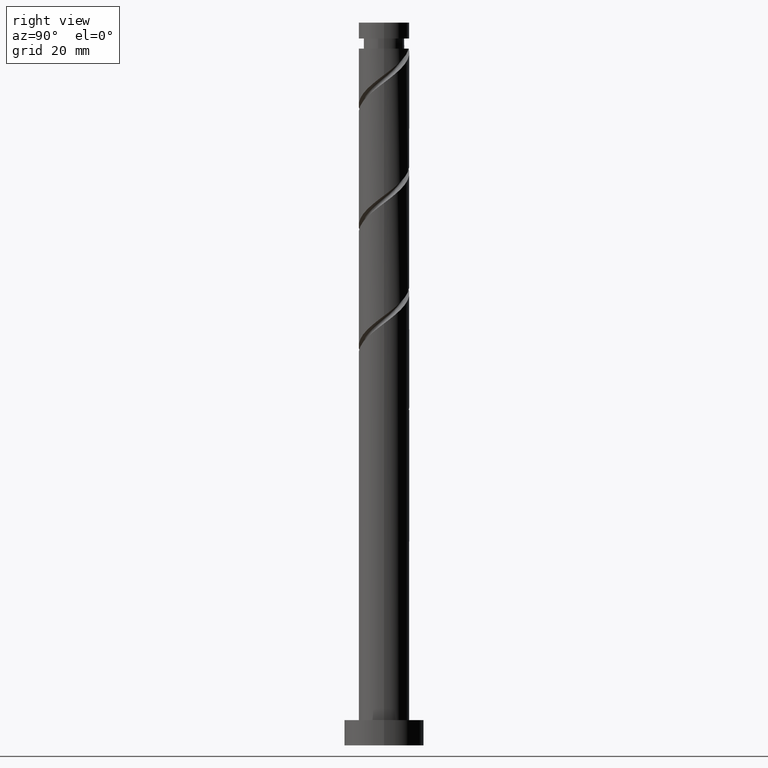
[diagram: clean part render]
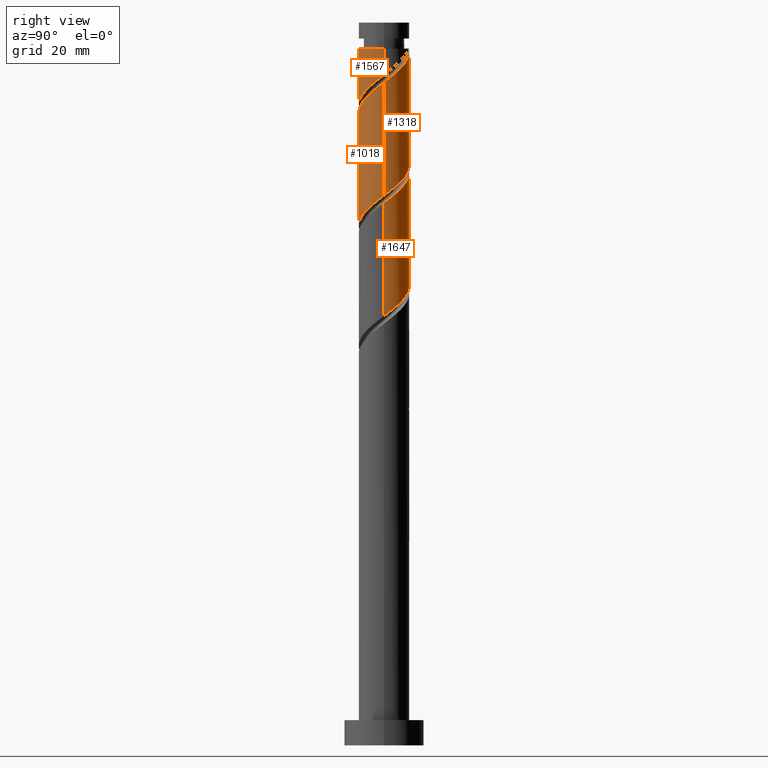
[diagram: same view with one multi-face feature highlighted, each face labeled with its STEP entity id]
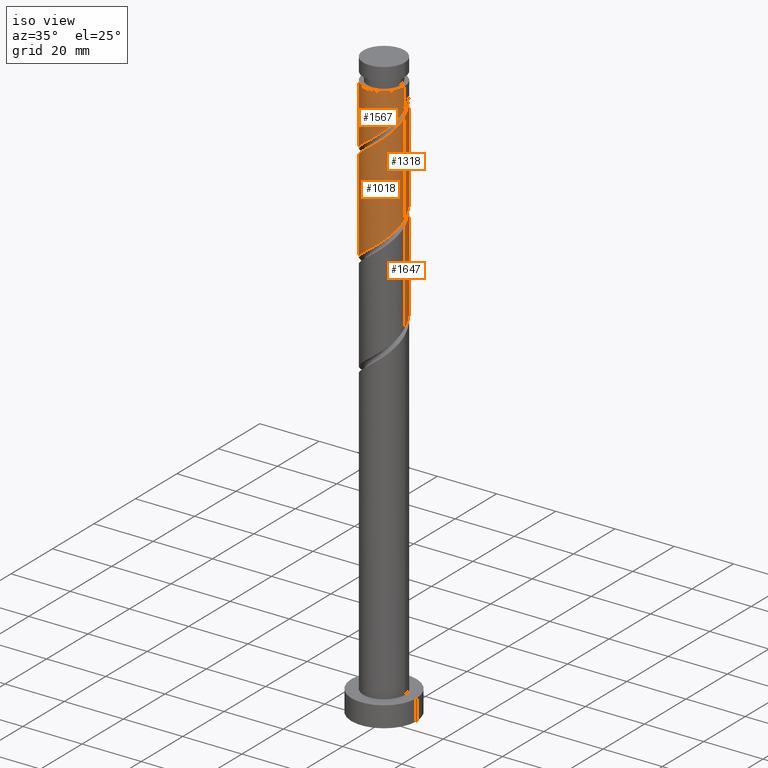
[diagram: same view with one multi-face feature highlighted, each face labeled with its STEP entity id]
A machine part, right view. The highlighted faces form ONE feature: a constant-radius fillet chain: 4 tangent blend faces with common blend radius 7 mm. The faces share edges in the B-rep.
A second angle (iso view) of the same feature is appended — it is thin or edge-on in the first view.
Their STEP definitions:
[1] entity #1567 (Cylinder):
#22 = ORIENTED_EDGE ( 'NONE', *, *, #439, .T. ) ;
#111 = LINE ( 'NONE', #642, #1714 ) ;
#142 = CARTESIAN_POINT ( 'NONE',  ( 7.000000000000000000, 2.183252528768553087E-15, 185.5235987208543236 ) ) ;
#184 = EDGE_LOOP ( 'NONE', ( #705, #1517, #22, #272 ) ) ;
#196 = VERTEX_POINT ( 'NONE', #1065 ) ;
#197 = DIRECTION ( 'NONE',  ( -1.000000000000000000, 0.000000000000000000, 0.000000000000000000 ) ) ;
#198 = DIRECTION ( 'NONE',  ( -0.000000000000000000, -0.000000000000000000, -1.000000000000000000 ) ) ;
#261 = CARTESIAN_POINT ( 'NONE',  ( -6.637425475935885721, -2.223641844227011166, 170.5711431767553279 ) ) ;
#270 = CARTESIAN_POINT ( 'NONE',  ( -6.986781546048323577, -0.4299809621350539346, 169.1822542878664990 ) ) ;
#272 = ORIENTED_EDGE ( 'NONE', *, *, #312, .F. ) ;
#279 = CARTESIAN_POINT ( 'NONE',  ( -5.835739828502638282, -3.865765209376793798, 171.9600320656442136 ) ) ;
#299 = CARTESIAN_POINT ( 'NONE',  ( 6.265720790637692161, -3.121016336671535552, 183.0711431767553563 ) ) ;
#312 = EDGE_CURVE ( 'NONE', #196, #601, #398, .T. ) ;
#395 = CARTESIAN_POINT ( 'NONE',  ( -0.4898462784997363317, -7.043389613628436408, 176.8211431767553279 ) ) ;
#398 =( BOUNDED_CURVE ( )  B_SPLINE_CURVE ( 2, ( #142, #1522, #838, #827, #299, #1617, #1503, #848, #1087, #1651, #1113, #1378, #952, #395, #1493, #943, #1103, #1385, #1348, #1485, #279, #422, #261, #975, #270, #1628, #413 ),
 .UNSPECIFIED., .F., .T. ) 
 B_SPLINE_CURVE_WITH_KNOTS ( ( 3, 2, 2, 2, 2, 2, 2, 2, 2, 2, 2, 2, 2, 3 ),
 ( 0.3045317669814463502, 0.3125000000000000000, 0.3229166666666666852, 0.3333333333333333148, 0.3437500000000000000, 0.3541666666666666852, 0.3645833333333333148, 0.3750000000000000000, 0.3854166666666666852, 0.3958333333333333148, 0.4062500000000000000, 0.4166666666666666852, 0.4270833333333333148, 0.4295317669814462391 ),
 .UNSPECIFIED. ) 
 CURVE ( )  GEOMETRIC_REPRESENTATION_ITEM ( )  RATIONAL_B_SPLINE_CURVE ( ( 0.9062941362546358404, 0.9031415850403403667, 0.9090909090909153889, 0.9013135103398340897, 0.9090909090909153889, 0.9013135103398340897, 0.9090909090909153889, 0.9013135103398340897, 0.9090909090909153889, 0.9013135103398340897, 0.9090909090909153889, 0.9013135103398340897, 0.9090909090909153889, 0.9013135103398340897, 0.9090909090909153889, 0.9013135103398340897, 0.9090909090909153889, 0.9013135103398340897, 0.9090909090909153889, 0.9013135103398340897, 0.9090909090909153889, 0.9013135103398340897, 0.9090909090909153889, 0.9013135103398340897, 0.9090909090909153889, 0.9072628343904093340, 0.9062941362546359514 ) ) 
 REPRESENTATION_ITEM ( '' )  );
#413 = CARTESIAN_POINT ( 'NONE',  ( -7.000000000000000000, -4.067429368664701480E-15, 168.8569320541876664 ) ) ;
#422 = CARTESIAN_POINT ( 'NONE',  ( -6.344677473403557144, -3.097475485684177521, 171.2655876211997850 ) ) ;
#437 = CYLINDRICAL_SURFACE ( 'NONE', #815, 7.000000000000000888 ) ;
#439 = EDGE_CURVE ( 'NONE', #979, #601, #1006, .T. ) ;
#457 = DIRECTION ( 'NONE',  ( -0.000000000000000000, -0.000000000000000000, -1.000000000000000000 ) ) ;
#465 = CARTESIAN_POINT ( 'NONE',  ( 0.000000000000000000, 0.000000000000000000, 200.0000000000000000 ) ) ;
#601 = VERTEX_POINT ( 'NONE', #758 ) ;
#617 = CARTESIAN_POINT ( 'NONE',  ( 0.000000000000000000, 0.000000000000000000, 192.7933653989775848 ) ) ;
#642 = CARTESIAN_POINT ( 'NONE',  ( 7.000000000000000888, 8.572527594031474176E-16, 200.0000000000000000 ) ) ;
#646 = EDGE_CURVE ( 'NONE', #1242, #979, #784, .T. ) ;
#705 = ORIENTED_EDGE ( 'NONE', *, *, #1693, .F. ) ;
#750 = CARTESIAN_POINT ( 'NONE',  ( -6.999999999999990230, 0.000000000000000000, 192.7933653989775848 ) ) ;
#758 = CARTESIAN_POINT ( 'NONE',  ( -7.000000000000000000, -4.067429368664701480E-15, 168.8569320541876664 ) ) ;
#784 = CIRCLE ( 'NONE', #1633, 6.999999999999990230 ) ;
#815 = AXIS2_PLACEMENT_3D ( 'NONE', #465, #457, #197 ) ;
#827 = CARTESIAN_POINT ( 'NONE',  ( 6.676610386371559791, -2.296118545398810884, 183.7655876211997850 ) ) ;
#838 = CARTESIAN_POINT ( 'NONE',  ( 6.860000000000002096, -1.392982411949271748, 184.4600320656442705 ) ) ;
#848 = CARTESIAN_POINT ( 'NONE',  ( 4.634054933069404747, -5.326802183601721197, 180.9878098434219567 ) ) ;
#943 = CARTESIAN_POINT ( 'NONE',  ( -2.296118545398808664, -6.676610386371562456, 175.4322542878664422 ) ) ;
#952 = CARTESIAN_POINT ( 'NONE',  ( 0.4299809621350517697, -6.986781546048325353, 177.5155876211998134 ) ) ;
#975 = CARTESIAN_POINT ( 'NONE',  ( -6.930173478468212522, -1.349808202769841259, 169.8766987323108708 ) ) ;
#979 = VERTEX_POINT ( 'NONE', #750 ) ;
#1006 = LINE ( 'NONE', #1273, #1526 ) ;
#1061 = DIRECTION ( 'NONE',  ( -0.000000000000000000, -0.000000000000000000, -1.000000000000000000 ) ) ;
#1065 = CARTESIAN_POINT ( 'NONE',  ( 7.000000000000000000, 2.183252528768553087E-15, 185.5235987208543236 ) ) ;
#1087 = CARTESIAN_POINT ( 'NONE',  ( 3.865765209376792022, -5.835739828502640947, 180.2933653989775280 ) ) ;
#1103 = CARTESIAN_POINT ( 'NONE',  ( -3.121016336671531999, -6.265720790637692161, 174.7378098434220703 ) ) ;
#1113 = CARTESIAN_POINT ( 'NONE',  ( 2.223641844227011166, -6.637425475935886610, 178.9044765100887275 ) ) ;
#1152 = DIRECTION ( 'NONE',  ( -1.000000000000000000, 0.000000000000000000, 0.000000000000000000 ) ) ;
#1174 = DIRECTION ( 'NONE',  ( -0.000000000000000000, -0.000000000000000000, -1.000000000000000000 ) ) ;
#1201 = CARTESIAN_POINT ( 'NONE',  ( 6.999999999999990230, 8.572527594031467273E-16, 192.7933653989775848 ) ) ;
#1242 = VERTEX_POINT ( 'NONE', #1201 ) ;
#1273 = CARTESIAN_POINT ( 'NONE',  ( -7.000000000000000888, 0.000000000000000000, 200.0000000000000000 ) ) ;
#1348 = CARTESIAN_POINT ( 'NONE',  ( -4.636358155772991374, -5.244443063986613751, 173.3489209545331562 ) ) ;
#1378 = CARTESIAN_POINT ( 'NONE',  ( 1.349808202769839705, -6.930173478468214299, 178.2100320656441852 ) ) ;
#1385 = CARTESIAN_POINT ( 'NONE',  ( -3.945914127944255778, -5.854831194903820979, 174.0433653989775848 ) ) ;
#1485 = CARTESIAN_POINT ( 'NONE',  ( -5.326802183601721197, -4.634054933069405635, 172.6544765100886138 ) ) ;
#1493 = CARTESIAN_POINT ( 'NONE',  ( -1.392982411949271304, -6.860000000000002096, 176.1266987323109561 ) ) ;
#1503 = CARTESIAN_POINT ( 'NONE',  ( 5.244443063986613751, -4.636358155772991374, 181.6822542878664990 ) ) ;
#1517 = ORIENTED_EDGE ( 'NONE', *, *, #646, .T. ) ;
#1522 = CARTESIAN_POINT ( 'NONE',  ( 7.000000000000000000, -0.7035264706814587932, 184.9901723516650520 ) ) ;
#1526 = VECTOR ( 'NONE', #198, 1000.000000000000000 ) ;
#1567 = ADVANCED_FACE ( 'NONE', ( #1673 ), #437, .T. ) ;
#1617 = CARTESIAN_POINT ( 'NONE',  ( 5.854831194903817426, -3.945914127944258443, 182.3766987323108708 ) ) ;
#1628 = CARTESIAN_POINT ( 'NONE',  ( -7.000000000000000888, -0.2151936616037147532, 169.0200957422158581 ) ) ;
#1633 = AXIS2_PLACEMENT_3D ( 'NONE', #617, #1061, #1152 ) ;
#1651 = CARTESIAN_POINT ( 'NONE',  ( 3.097475485684177521, -6.344677473403557144, 179.5989209545331278 ) ) ;
#1673 = FACE_OUTER_BOUND ( 'NONE', #184, .T. ) ;
#1693 = EDGE_CURVE ( 'NONE', #1242, #196, #111, .T. ) ;
#1714 = VECTOR ( 'NONE', #1174, 1000.000000000000000 ) ;
[2] entity #1318 (Cylinder):
#41 = CARTESIAN_POINT ( 'NONE',  ( 7.000000000000000888, 9.630237181691427221E-15, 152.1902653875210376 ) ) ;
#92 = ORIENTED_EDGE ( 'NONE', *, *, #127, .T. ) ;
#94 = CARTESIAN_POINT ( 'NONE',  ( 5.835739828502640059, 3.865765209376793798, 155.2933653989775564 ) ) ;
#127 = EDGE_CURVE ( 'NONE', #979, #977, #612, .T. ) ;
#178 = CARTESIAN_POINT ( 'NONE',  ( 2.296118545398811772, 6.676610386371559791, 158.7655876211997850 ) ) ;
#198 = DIRECTION ( 'NONE',  ( -0.000000000000000000, -0.000000000000000000, -1.000000000000000000 ) ) ;
#298 = DIRECTION ( 'NONE',  ( -1.000000000000000000, 0.000000000000000000, 0.000000000000000000 ) ) ;
#303 = AXIS2_PLACEMENT_3D ( 'NONE', #1530, #1120, #298 ) ;
#308 = CARTESIAN_POINT ( 'NONE',  ( -6.676610386371562456, 2.296118545398806443, 167.0989209545330709 ) ) ;
#318 = CARTESIAN_POINT ( 'NONE',  ( 1.392982411949271970, 6.860000000000002096, 159.4600320656442705 ) ) ;
#324 = CARTESIAN_POINT ( 'NONE',  ( 1.349808202769851029, 6.930173478468224069, 190.7100320656442989 ) ) ;
#336 = CARTESIAN_POINT ( 'NONE',  ( -2.223641844227011610, 6.637425475935885721, 162.2378098434220135 ) ) ;
#343 = CARTESIAN_POINT ( 'NONE',  ( 7.000000000000000888, 0.2151936616037162242, 152.3534290755492293 ) ) ;
#371 = CARTESIAN_POINT ( 'NONE',  ( 3.945914127944258443, 5.854831194903817426, 157.3766987323108708 ) ) ;
#438 = CARTESIAN_POINT ( 'NONE',  ( -4.634054933069408300, 5.326802183601719420, 164.3211431767553563 ) ) ;
#439 = EDGE_CURVE ( 'NONE', #979, #601, #1006, .T. ) ;
#440 = EDGE_CURVE ( 'NONE', #1663, #977, #1274, .T. ) ;
#448 = CARTESIAN_POINT ( 'NONE',  ( 7.000000000000010658, 0.7035264706814454705, 183.9298917796234889 ) ) ;
#458 = CARTESIAN_POINT ( 'NONE',  ( 6.860000000000008313, 1.392982411949269528, 184.4600320656442420 ) ) ;
#466 = CARTESIAN_POINT ( 'NONE',  ( 6.676610386371576666, 2.296118545398805111, 185.1544765100887275 ) ) ;
#472 = ORIENTED_EDGE ( 'NONE', *, *, #440, .F. ) ;
#491 = EDGE_CURVE ( 'NONE', #601, #1525, #1558, .T. ) ;
#494 = EDGE_LOOP ( 'NONE', ( #472, #1283, #855, #530, #92 ) ) ;
#514 = CARTESIAN_POINT ( 'NONE',  ( 6.986781546048323577, 0.4299809621350512701, 152.5155876211998134 ) ) ;
#530 = ORIENTED_EDGE ( 'NONE', *, *, #439, .F. ) ;
#585 = CARTESIAN_POINT ( 'NONE',  ( 5.244443063986624409, 4.636358155772987821, 187.2378098434220135 ) ) ;
#601 = VERTEX_POINT ( 'NONE', #758 ) ;
#604 = CARTESIAN_POINT ( 'NONE',  ( 3.865765209376801792, 5.835739828502643611, 188.6266987323109277 ) ) ;
#609 = CARTESIAN_POINT ( 'NONE',  ( -1.349808202769843701, 6.930173478468212522, 161.5433653989774996 ) ) ;
#612 = CIRCLE ( 'NONE', #1172, 6.999999999999990230 ) ;
#726 = CARTESIAN_POINT ( 'NONE',  ( 3.097475485684188623, 6.344677473403562473, 189.3211431767554132 ) ) ;
#728 = VECTOR ( 'NONE', #958, 1000.000000000000000 ) ;
#740 = CARTESIAN_POINT ( 'NONE',  ( -6.265720790637692161, 3.121016336671531555, 166.4044765100887560 ) ) ;
#750 = CARTESIAN_POINT ( 'NONE',  ( -6.999999999999990230, 0.000000000000000000, 192.7933653989775848 ) ) ;
#758 = CARTESIAN_POINT ( 'NONE',  ( -7.000000000000000000, -4.067429368664701480E-15, 168.8569320541876664 ) ) ;
#761 = DIRECTION ( 'NONE',  ( -0.000000000000000000, -0.000000000000000000, -1.000000000000000000 ) ) ;
#765 = CARTESIAN_POINT ( 'NONE',  ( 6.930173478468214299, 1.349808202769839260, 153.2100320656441852 ) ) ;
#770 = DIRECTION ( 'NONE',  ( -1.000000000000000000, 0.000000000000000000, 0.000000000000000000 ) ) ;
#855 = ORIENTED_EDGE ( 'NONE', *, *, #491, .F. ) ;
#857 = CARTESIAN_POINT ( 'NONE',  ( 0.4898462784997342778, 7.043389613628434631, 160.1544765100886707 ) ) ;
#885 = CARTESIAN_POINT ( 'NONE',  ( 6.265720790637704596, 3.121016336671531555, 185.8489209545331278 ) ) ;
#912 = CARTESIAN_POINT ( 'NONE',  ( 7.000000000000010658, -1.884176839896138137E-15, 183.3964654104341889 ) ) ;
#958 = DIRECTION ( 'NONE',  ( -0.000000000000000000, -0.000000000000000000, -1.000000000000000000 ) ) ;
#977 = VERTEX_POINT ( 'NONE', #1294 ) ;
#979 = VERTEX_POINT ( 'NONE', #750 ) ;
#991 = CARTESIAN_POINT ( 'NONE',  ( -5.854831194903820979, 3.945914127944254890, 165.7100320656442136 ) ) ;
#1000 = CARTESIAN_POINT ( 'NONE',  ( 5.854831194903831637, 3.945914127944256666, 186.5433653989776133 ) ) ;
#1006 = LINE ( 'NONE', #1273, #1526 ) ;
#1026 = CARTESIAN_POINT ( 'NONE',  ( 3.121016336671535552, 6.265720790637690385, 158.0711431767553563 ) ) ;
#1085 = FACE_OUTER_BOUND ( 'NONE', #494, .T. ) ;
#1120 = DIRECTION ( 'NONE',  ( -0.000000000000000000, -0.000000000000000000, -1.000000000000000000 ) ) ;
#1121 = CARTESIAN_POINT ( 'NONE',  ( 4.634054933069419846, 5.326802183601722085, 187.9322542878664990 ) ) ;
#1126 = CARTESIAN_POINT ( 'NONE',  ( -7.000000000000000888, 0.7035264706814483571, 168.3235056849983380 ) ) ;
#1145 = CARTESIAN_POINT ( 'NONE',  ( -3.097475485684180185, 6.344677473403554480, 162.9322542878664137 ) ) ;
#1172 = AXIS2_PLACEMENT_3D ( 'NONE', #1716, #761, #770 ) ;
#1257 = CARTESIAN_POINT ( 'NONE',  ( -1.392982411949220900, 6.860000000000013642, 192.7933653989775564 ) ) ;
#1273 = CARTESIAN_POINT ( 'NONE',  ( -7.000000000000000888, 0.000000000000000000, 200.0000000000000000 ) ) ;
#1274 =( BOUNDED_CURVE ( )  B_SPLINE_CURVE ( 2, ( #1674, #448, #458, #466, #885, #1000, #585, #1121, #604, #726, #1399, #324, #1679, #1421, #1257 ),
 .UNSPECIFIED., .F., .T. ) 
 B_SPLINE_CURVE_WITH_KNOTS ( ( 3, 2, 2, 2, 2, 2, 2, 3 ),
 ( 0.6795317669814462391, 0.6875000000000000000, 0.6979166666666667407, 0.7083333333333332593, 0.7187500000000001110, 0.7291666666666668517, 0.7395833333333333703, 0.7500000000000001110 ),
 .UNSPECIFIED. ) 
 CURVE ( )  GEOMETRIC_REPRESENTATION_ITEM ( )  RATIONAL_B_SPLINE_CURVE ( ( 0.9062941362546410584, 0.9031415850403452517, 0.9090909090909207180, 0.9013135103398389747, 0.9090909090909207180, 0.9013135103398389747, 0.9090909090909207180, 0.9013135103398389747, 0.9090909090909207180, 0.9013135103398389747, 0.9090909090909207180, 0.9013135103398389747, 0.9090909090909207180, 0.9013135103398389747, 0.9090909090909207180 ) ) 
 REPRESENTATION_ITEM ( '' )  );
#1276 = EDGE_CURVE ( 'NONE', #1663, #1525, #1751, .T. ) ;
#1279 = CARTESIAN_POINT ( 'NONE',  ( -3.865765209376795575, 5.835739828502638282, 163.6266987323109277 ) ) ;
#1283 = ORIENTED_EDGE ( 'NONE', *, *, #1276, .T. ) ;
#1294 = CARTESIAN_POINT ( 'NONE',  ( -1.392982411949220900, 6.860000000000012754, 192.7933653989775564 ) ) ;
#1311 = CARTESIAN_POINT ( 'NONE',  ( 7.000000000000000888, 9.630237181691427221E-15, 152.1902653875210376 ) ) ;
#1318 = ADVANCED_FACE ( 'NONE', ( #1085 ), #1615, .T. ) ;
#1394 = CARTESIAN_POINT ( 'NONE',  ( -6.860000000000002096, 1.392982411949270860, 167.7933653989776133 ) ) ;
#1399 = CARTESIAN_POINT ( 'NONE',  ( 2.223641844227019160, 6.637425475935890162, 190.0155876211998134 ) ) ;
#1408 = CARTESIAN_POINT ( 'NONE',  ( -5.244443063986614639, 4.636358155772991374, 165.0155876211998134 ) ) ;
#1421 = CARTESIAN_POINT ( 'NONE',  ( -0.4898462784997368868, 7.043389613628446178, 192.0989209545331278 ) ) ;
#1427 = CARTESIAN_POINT ( 'NONE',  ( 4.636358155772991374, 5.244443063986612863, 156.6822542878665274 ) ) ;
#1462 = CARTESIAN_POINT ( 'NONE',  ( 5.326802183601721197, 4.634054933069404747, 155.9878098434220419 ) ) ;
#1525 = VERTEX_POINT ( 'NONE', #41 ) ;
#1526 = VECTOR ( 'NONE', #198, 1000.000000000000000 ) ;
#1530 = CARTESIAN_POINT ( 'NONE',  ( 0.000000000000000000, 0.000000000000000000, 200.0000000000000000 ) ) ;
#1531 = CARTESIAN_POINT ( 'NONE',  ( -0.4299809621350546562, 6.986781546048323577, 160.8489209545331278 ) ) ;
#1558 =( BOUNDED_CURVE ( )  B_SPLINE_CURVE ( 2, ( #1659, #1126, #1394, #308, #740, #991, #1408, #438, #1279, #1145, #336, #609, #1531, #857, #318, #178, #1026, #371, #1427, #1462, #94, #1720, #1564, #765, #514, #343, #1311 ),
 .UNSPECIFIED., .F., .T. ) 
 B_SPLINE_CURVE_WITH_KNOTS ( ( 3, 2, 2, 2, 2, 2, 2, 2, 2, 2, 2, 2, 2, 3 ),
 ( 0.4295317669814462391, 0.4375000000000000000, 0.4479166666666666852, 0.4583333333333333148, 0.4687500000000000000, 0.4791666666666666852, 0.4895833333333333148, 0.5000000000000000000, 0.5104166666666666297, 0.5208333333333333703, 0.5312500000000000000, 0.5416666666666666297, 0.5520833333333333703, 0.5545317669814462391 ),
 .UNSPECIFIED. ) 
 CURVE ( )  GEOMETRIC_REPRESENTATION_ITEM ( )  RATIONAL_B_SPLINE_CURVE ( ( 0.9062941362546359514, 0.9031415850403403667, 0.9090909090909153889, 0.9013135103398340897, 0.9090909090909153889, 0.9013135103398340897, 0.9090909090909153889, 0.9013135103398340897, 0.9090909090909153889, 0.9013135103398340897, 0.9090909090909153889, 0.9013135103398340897, 0.9090909090909153889, 0.9013135103398340897, 0.9090909090909153889, 0.9013135103398340897, 0.9090909090909153889, 0.9013135103398340897, 0.9090909090909153889, 0.9013135103398340897, 0.9090909090909153889, 0.9013135103398340897, 0.9090909090909153889, 0.9013135103398340897, 0.9090909090909153889, 0.9072628343904092230, 0.9062941362546358404 ) ) 
 REPRESENTATION_ITEM ( '' )  );
#1564 = CARTESIAN_POINT ( 'NONE',  ( 6.637425475935887498, 2.223641844227007613, 153.9044765100886423 ) ) ;
#1606 = CARTESIAN_POINT ( 'NONE',  ( 7.000000000000000888, 8.572527594031474176E-16, 200.0000000000000000 ) ) ;
#1615 = CYLINDRICAL_SURFACE ( 'NONE', #303, 7.000000000000000888 ) ;
#1659 = CARTESIAN_POINT ( 'NONE',  ( -7.000000000000000000, -4.067429368664701480E-15, 168.8569320541876664 ) ) ;
#1663 = VERTEX_POINT ( 'NONE', #912 ) ;
#1674 = CARTESIAN_POINT ( 'NONE',  ( 7.000000000000010658, -1.884176839896138137E-15, 183.3964654104341889 ) ) ;
#1679 = CARTESIAN_POINT ( 'NONE',  ( 0.4299809621350618172, 6.986781546048335123, 191.4044765100886707 ) ) ;
#1716 = CARTESIAN_POINT ( 'NONE',  ( 0.000000000000000000, 0.000000000000000000, 192.7933653989775848 ) ) ;
#1720 = CARTESIAN_POINT ( 'NONE',  ( 6.344677473403558032, 3.097475485684173080, 154.5989209545331562 ) ) ;
#1751 = LINE ( 'NONE', #1606, #728 ) ;
[3] entity #1018 (Cylinder):
#8 = CARTESIAN_POINT ( 'NONE',  ( -0.4299809621350582090, -6.986781546048334235, 174.7378098434220419 ) ) ;
#11 = CYLINDRICAL_SURFACE ( 'NONE', #102, 7.000000000000000888 ) ;
#29 = CARTESIAN_POINT ( 'NONE',  ( 6.986781546048334235, -0.4299809621350615396, 183.0711431767553563 ) ) ;
#41 = CARTESIAN_POINT ( 'NONE',  ( 7.000000000000000888, 9.630237181691427221E-15, 152.1902653875210376 ) ) ;
#48 = CARTESIAN_POINT ( 'NONE',  ( -7.000000000000000888, 0.000000000000000000, 200.0000000000000000 ) ) ;
#71 = CARTESIAN_POINT ( 'NONE',  ( 7.000000000000000888, 9.630237181691427221E-15, 152.1902653875210376 ) ) ;
#79 = CARTESIAN_POINT ( 'NONE',  ( 6.265720790637692161, -3.121016336671535552, 149.7378098434220703 ) ) ;
#100 = CARTESIAN_POINT ( 'NONE',  ( -5.835739828502638282, -3.865765209376793798, 138.6266987323109277 ) ) ;
#102 = AXIS2_PLACEMENT_3D ( 'NONE', #160, #1336, #683 ) ;
#119 = CARTESIAN_POINT ( 'NONE',  ( -2.223641844227017828, -6.637425475935891939, 173.3489209545330709 ) ) ;
#131 = FACE_OUTER_BOUND ( 'NONE', #329, .T. ) ;
#160 = CARTESIAN_POINT ( 'NONE',  ( 0.000000000000000000, 0.000000000000000000, 200.0000000000000000 ) ) ;
#209 = CARTESIAN_POINT ( 'NONE',  ( -6.637425475935885721, -2.223641844227011166, 137.2378098434220135 ) ) ;
#225 = CARTESIAN_POINT ( 'NONE',  ( 1.349808202769839705, -6.930173478468214299, 144.8766987323108992 ) ) ;
#231 = CARTESIAN_POINT ( 'NONE',  ( 2.223641844227011166, -6.637425475935886610, 145.5711431767553279 ) ) ;
#239 = CARTESIAN_POINT ( 'NONE',  ( -4.636358155772991374, -5.244443063986613751, 140.0155876211998134 ) ) ;
#275 = CARTESIAN_POINT ( 'NONE',  ( 4.636358155772991374, -5.244443063986622633, 178.9044765100886138 ) ) ;
#329 = EDGE_LOOP ( 'NONE', ( #1351, #1479, #821, #715 ) ) ;
#354 = CARTESIAN_POINT ( 'NONE',  ( -7.000000000000002665, -0.2151936616037087024, 135.6867624088824584 ) ) ;
#370 = CARTESIAN_POINT ( 'NONE',  ( 3.097475485684177521, -6.344677473403557144, 146.2655876211998134 ) ) ;
#401 = CARTESIAN_POINT ( 'NONE',  ( 3.121016336671531555, -6.265720790637702819, 177.5155876211997850 ) ) ;
#426 = CARTESIAN_POINT ( 'NONE',  ( -4.634054933069417181, -5.326802183601726526, 171.2655876211997850 ) ) ;
#462 = EDGE_CURVE ( 'NONE', #1278, #1271, #1265, .T. ) ;
#479 = CARTESIAN_POINT ( 'NONE',  ( -3.121016336671531999, -6.265720790637692161, 141.4044765100887275 ) ) ;
#502 = CARTESIAN_POINT ( 'NONE',  ( 5.854831194903817426, -3.945914127944258443, 149.0433653989775848 ) ) ;
#532 = CARTESIAN_POINT ( 'NONE',  ( -7.000000000000008882, -2.482328217640943582E-15, 166.7297987437675602 ) ) ;
#535 = CARTESIAN_POINT ( 'NONE',  ( -7.000000000000009770, -2.482328217640943582E-15, 166.7297987437675886 ) ) ;
#543 = CARTESIAN_POINT ( 'NONE',  ( 5.326802183601726526, -4.634054933069417181, 179.5989209545331846 ) ) ;
#624 = CARTESIAN_POINT ( 'NONE',  ( -6.344677473403557144, -3.097475485684177521, 137.9322542878664137 ) ) ;
#653 =( BOUNDED_CURVE ( )  B_SPLINE_CURVE ( 2, ( #71, #1579, #1053, #904, #79, #502, #1323, #764, #1291, #370, #231, #225, #1588, #1025, #1441, #918, #479, #1461, #239, #1019, #100, #624, #209, #774, #884, #354, #1301 ),
 .UNSPECIFIED., .F., .T. ) 
 B_SPLINE_CURVE_WITH_KNOTS ( ( 3, 2, 2, 2, 2, 2, 2, 2, 2, 2, 2, 2, 2, 3 ),
 ( 0.5545317669814462391, 0.5625000000000000000, 0.5729166666666666297, 0.5833333333333333703, 0.5937500000000000000, 0.6041666666666666297, 0.6145833333333333703, 0.6250000000000000000, 0.6354166666666666297, 0.6458333333333333703, 0.6562500000000000000, 0.6666666666666666297, 0.6770833333333333703, 0.6795317669814463502 ),
 .UNSPECIFIED. ) 
 CURVE ( )  GEOMETRIC_REPRESENTATION_ITEM ( )  RATIONAL_B_SPLINE_CURVE ( ( 0.9062941362546358404, 0.9031415850403401446, 0.9090909090909153889, 0.9013135103398340897, 0.9090909090909153889, 0.9013135103398340897, 0.9090909090909153889, 0.9013135103398340897, 0.9090909090909153889, 0.9013135103398340897, 0.9090909090909153889, 0.9013135103398340897, 0.9090909090909153889, 0.9013135103398340897, 0.9090909090909153889, 0.9013135103398340897, 0.9090909090909153889, 0.9013135103398340897, 0.9090909090909153889, 0.9013135103398340897, 0.9090909090909153889, 0.9013135103398340897, 0.9090909090909153889, 0.9013135103398340897, 0.9090909090909153889, 0.9072628343904091119, 0.9062941362546357293 ) ) 
 REPRESENTATION_ITEM ( '' )  );
#671 = CARTESIAN_POINT ( 'NONE',  ( 1.392982411949269972, -6.860000000000008313, 176.1266987323108992 ) ) ;
#683 = DIRECTION ( 'NONE',  ( -1.000000000000000000, 0.000000000000000000, 0.000000000000000000 ) ) ;
#690 = CARTESIAN_POINT ( 'NONE',  ( -3.865765209376801348, -5.835739828502645388, 171.9600320656442136 ) ) ;
#698 = CARTESIAN_POINT ( 'NONE',  ( -6.676610386371576666, -2.296118545398806443, 168.4878098434220703 ) ) ;
#715 = ORIENTED_EDGE ( 'NONE', *, *, #1618, .F. ) ;
#728 = VECTOR ( 'NONE', #958, 1000.000000000000000 ) ;
#764 = CARTESIAN_POINT ( 'NONE',  ( 4.634054933069404747, -5.326802183601721197, 147.6544765100885854 ) ) ;
#774 = CARTESIAN_POINT ( 'NONE',  ( -6.930173478468212522, -1.349808202769841259, 136.5433653989775564 ) ) ;
#803 = CARTESIAN_POINT ( 'NONE',  ( 6.344677473403562473, -3.097475485684187735, 180.9878098434220135 ) ) ;
#812 = EDGE_CURVE ( 'NONE', #1278, #1663, #853, .T. ) ;
#821 = ORIENTED_EDGE ( 'NONE', *, *, #462, .T. ) ;
#823 = CARTESIAN_POINT ( 'NONE',  ( -5.244443063986621745, -4.636358155772991374, 170.5711431767553279 ) ) ;
#853 =( BOUNDED_CURVE ( )  B_SPLINE_CURVE ( 2, ( #532, #970, #1209, #698, #1344, #981, #823, #426, #690, #1355, #119, #938, #8, #1604, #671, #1191, #401, #949, #275, #543, #1490, #803, #1509, #1334, #29, #1092, #1220 ),
 .UNSPECIFIED., .F., .T. ) 
 B_SPLINE_CURVE_WITH_KNOTS ( ( 3, 2, 2, 2, 2, 2, 2, 2, 2, 2, 2, 2, 2, 3 ),
 ( 0.5545317669814464612, 0.5625000000000000000, 0.5729166666666667407, 0.5833333333333332593, 0.5937500000000000000, 0.6041666666666667407, 0.6145833333333332593, 0.6250000000000000000, 0.6354166666666667407, 0.6458333333333332593, 0.6562500000000000000, 0.6666666666666667407, 0.6770833333333332593, 0.6795317669814462391 ),
 .UNSPECIFIED. ) 
 CURVE ( )  GEOMETRIC_REPRESENTATION_ITEM ( )  RATIONAL_B_SPLINE_CURVE ( ( 0.9062941362546408364, 0.9031415850403454737, 0.9090909090909207180, 0.9013135103398389747, 0.9090909090909207180, 0.9013135103398389747, 0.9090909090909207180, 0.9013135103398389747, 0.9090909090909207180, 0.9013135103398389747, 0.9090909090909207180, 0.9013135103398389747, 0.9090909090909207180, 0.9013135103398389747, 0.9090909090909207180, 0.9013135103398389747, 0.9090909090909207180, 0.9013135103398389747, 0.9090909090909207180, 0.9013135103398389747, 0.9090909090909207180, 0.9013135103398389747, 0.9090909090909207180, 0.9013135103398389747, 0.9090909090909207180, 0.9072628343904144410, 0.9062941362546410584 ) ) 
 REPRESENTATION_ITEM ( '' )  );
#878 = DIRECTION ( 'NONE',  ( -0.000000000000000000, -0.000000000000000000, -1.000000000000000000 ) ) ;
#884 = CARTESIAN_POINT ( 'NONE',  ( -6.986781546048323577, -0.4299809621350539346, 135.8489209545331562 ) ) ;
#904 = CARTESIAN_POINT ( 'NONE',  ( 6.676610386371559791, -2.296118545398810884, 150.4322542878664422 ) ) ;
#912 = CARTESIAN_POINT ( 'NONE',  ( 7.000000000000010658, -1.884176839896138137E-15, 183.3964654104341889 ) ) ;
#918 = CARTESIAN_POINT ( 'NONE',  ( -2.296118545398808664, -6.676610386371562456, 142.0989209545330425 ) ) ;
#938 = CARTESIAN_POINT ( 'NONE',  ( -1.349808202769847476, -6.930173478468224069, 174.0433653989776133 ) ) ;
#949 = CARTESIAN_POINT ( 'NONE',  ( 3.945914127944257555, -5.854831194903831637, 178.2100320656442705 ) ) ;
#958 = DIRECTION ( 'NONE',  ( -0.000000000000000000, -0.000000000000000000, -1.000000000000000000 ) ) ;
#970 = CARTESIAN_POINT ( 'NONE',  ( -7.000000000000006217, -0.7035264706814693403, 167.2632251129568601 ) ) ;
#973 = CARTESIAN_POINT ( 'NONE',  ( -7.000000000000000888, 8.015228461780444237E-15, 135.5235987208543236 ) ) ;
#981 = CARTESIAN_POINT ( 'NONE',  ( -5.854831194903831637, -3.945914127944258887, 169.8766987323108992 ) ) ;
#1018 = ADVANCED_FACE ( 'NONE', ( #131 ), #11, .T. ) ;
#1019 = CARTESIAN_POINT ( 'NONE',  ( -5.326802183601721197, -4.634054933069405635, 139.3211431767553279 ) ) ;
#1025 = CARTESIAN_POINT ( 'NONE',  ( -0.4898462784997363317, -7.043389613628436408, 143.4878098434220135 ) ) ;
#1053 = CARTESIAN_POINT ( 'NONE',  ( 6.860000000000002096, -1.392982411949271748, 151.1266987323108992 ) ) ;
#1067 = VECTOR ( 'NONE', #878, 1000.000000000000000 ) ;
#1092 = CARTESIAN_POINT ( 'NONE',  ( 7.000000000000011546, -0.2151936616037188610, 183.2333017224060256 ) ) ;
#1191 = CARTESIAN_POINT ( 'NONE',  ( 2.296118545398806443, -6.676610386371576666, 176.8211431767553847 ) ) ;
#1209 = CARTESIAN_POINT ( 'NONE',  ( -6.860000000000008313, -1.392982411949270416, 167.7933653989775564 ) ) ;
#1220 = CARTESIAN_POINT ( 'NONE',  ( 7.000000000000010658, -1.884176839896138137E-15, 183.3964654104341889 ) ) ;
#1265 = LINE ( 'NONE', #48, #1067 ) ;
#1271 = VERTEX_POINT ( 'NONE', #973 ) ;
#1276 = EDGE_CURVE ( 'NONE', #1663, #1525, #1751, .T. ) ;
#1278 = VERTEX_POINT ( 'NONE', #535 ) ;
#1291 = CARTESIAN_POINT ( 'NONE',  ( 3.865765209376792022, -5.835739828502640947, 146.9600320656442989 ) ) ;
#1301 = CARTESIAN_POINT ( 'NONE',  ( -7.000000000000000888, 8.015228461780444237E-15, 135.5235987208543236 ) ) ;
#1323 = CARTESIAN_POINT ( 'NONE',  ( 5.244443063986613751, -4.636358155772991374, 148.3489209545331562 ) ) ;
#1334 = CARTESIAN_POINT ( 'NONE',  ( 6.930173478468224069, -1.349808202769851029, 182.3766987323109561 ) ) ;
#1336 = DIRECTION ( 'NONE',  ( -0.000000000000000000, -0.000000000000000000, -1.000000000000000000 ) ) ;
#1344 = CARTESIAN_POINT ( 'NONE',  ( -6.265720790637701931, -3.121016336671533331, 169.1822542878664990 ) ) ;
#1351 = ORIENTED_EDGE ( 'NONE', *, *, #1276, .F. ) ;
#1355 = CARTESIAN_POINT ( 'NONE',  ( -3.097475485684187735, -6.344677473403563361, 172.6544765100886991 ) ) ;
#1441 = CARTESIAN_POINT ( 'NONE',  ( -1.392982411949271304, -6.860000000000002096, 142.7933653989775848 ) ) ;
#1461 = CARTESIAN_POINT ( 'NONE',  ( -3.945914127944255778, -5.854831194903820979, 140.7100320656442136 ) ) ;
#1479 = ORIENTED_EDGE ( 'NONE', *, *, #812, .F. ) ;
#1490 = CARTESIAN_POINT ( 'NONE',  ( 5.835739828502642723, -3.865765209376803568, 180.2933653989775848 ) ) ;
#1509 = CARTESIAN_POINT ( 'NONE',  ( 6.637425475935891939, -2.223641844227019160, 181.6822542878664706 ) ) ;
#1525 = VERTEX_POINT ( 'NONE', #41 ) ;
#1579 = CARTESIAN_POINT ( 'NONE',  ( 7.000000000000002665, -0.7035264706814455815, 151.6568390183317376 ) ) ;
#1588 = CARTESIAN_POINT ( 'NONE',  ( 0.4299809621350517697, -6.986781546048325353, 144.1822542878665274 ) ) ;
#1604 = CARTESIAN_POINT ( 'NONE',  ( 0.4898462784997315023, -7.043389613628446178, 175.4322542878664990 ) ) ;
#1606 = CARTESIAN_POINT ( 'NONE',  ( 7.000000000000000888, 8.572527594031474176E-16, 200.0000000000000000 ) ) ;
#1618 = EDGE_CURVE ( 'NONE', #1525, #1271, #653, .T. ) ;
#1663 = VERTEX_POINT ( 'NONE', #912 ) ;
#1751 = LINE ( 'NONE', #1606, #728 ) ;
[4] entity #1647 (Cylinder):
#2 = CARTESIAN_POINT ( 'NONE',  ( -5.326802183601727414, 4.634054933069416293, 162.9322542878664706 ) ) ;
#48 = CARTESIAN_POINT ( 'NONE',  ( -7.000000000000000888, 0.000000000000000000, 200.0000000000000000 ) ) ;
#70 = VERTEX_POINT ( 'NONE', #1142 ) ;
#76 = EDGE_CURVE ( 'NONE', #1271, #70, #520, .T. ) ;
#83 = CARTESIAN_POINT ( 'NONE',  ( -2.223641844227011610, 6.637425475935885721, 128.9044765100886707 ) ) ;
#85 = DIRECTION ( 'NONE',  ( -1.000000000000000000, 0.000000000000000000, 0.000000000000000000 ) ) ;
#89 = CARTESIAN_POINT ( 'NONE',  ( 2.223641844227019160, 6.637425475935890162, 156.6822542878664137 ) ) ;
#115 = CARTESIAN_POINT ( 'NONE',  ( 6.265720790637704596, 3.121016336671531555, 152.5155876211998134 ) ) ;
#144 = VERTEX_POINT ( 'NONE', #229 ) ;
#149 = CARTESIAN_POINT ( 'NONE',  ( 7.000000000000000888, 8.572527594031474176E-16, 200.0000000000000000 ) ) ;
#173 = CARTESIAN_POINT ( 'NONE',  ( -4.636358155772993150, 5.244443063986621745, 162.2378098434219851 ) ) ;
#181 = CARTESIAN_POINT ( 'NONE',  ( -7.000000000000000888, 8.015228461780444237E-15, 135.5235987208543236 ) ) ;
#193 = CARTESIAN_POINT ( 'NONE',  ( -6.860000000000002096, 1.392982411949270860, 134.4600320656442705 ) ) ;
#220 = CARTESIAN_POINT ( 'NONE',  ( 3.865765209376801792, 5.835739828502643611, 155.2933653989775848 ) ) ;
#229 = CARTESIAN_POINT ( 'NONE',  ( 7.000000000000011546, 4.486135333086043795E-16, 150.0631320771009030 ) ) ;
#254 = EDGE_CURVE ( 'NONE', #144, #1278, #1611, .T. ) ;
#281 = ORIENTED_EDGE ( 'NONE', *, *, #1127, .T. ) ;
#341 = ORIENTED_EDGE ( 'NONE', *, *, #76, .F. ) ;
#346 = CARTESIAN_POINT ( 'NONE',  ( 7.000000000000010658, 0.7035264706814527980, 150.5965584462901745 ) ) ;
#393 = DIRECTION ( 'NONE',  ( -0.000000000000000000, -0.000000000000000000, -1.000000000000000000 ) ) ;
#404 = CARTESIAN_POINT ( 'NONE',  ( -6.930173478468224069, 1.349808202769846810, 165.7100320656442705 ) ) ;
#430 = CARTESIAN_POINT ( 'NONE',  ( -6.986781546048331570, 0.4299809621350577094, 166.4044765100887275 ) ) ;
#452 = CARTESIAN_POINT ( 'NONE',  ( 2.296118545398811772, 6.676610386371559791, 125.4322542878664137 ) ) ;
#462 = EDGE_CURVE ( 'NONE', #1278, #1271, #1265, .T. ) ;
#468 = CARTESIAN_POINT ( 'NONE',  ( -4.634054933069408300, 5.326802183601719420, 130.9878098434220419 ) ) ;
#476 = CARTESIAN_POINT ( 'NONE',  ( -3.865765209376795575, 5.835739828502638282, 130.2933653989775848 ) ) ;
#483 = CARTESIAN_POINT ( 'NONE',  ( 6.637425475935887498, 2.223641844227007613, 120.5711431767553705 ) ) ;
#520 =( BOUNDED_CURVE ( )  B_SPLINE_CURVE ( 2, ( #181, #751, #193, #881, #1681, #1259, #1689, #468, #476, #1289, #83, #1281, #1023, #1014, #1269, #452, #1416, #1546, #620, #1148, #1155, #1697, #483, #1135, #1533, #721, #1669 ),
 .UNSPECIFIED., .F., .T. ) 
 B_SPLINE_CURVE_WITH_KNOTS ( ( 3, 2, 2, 2, 2, 2, 2, 2, 2, 2, 2, 2, 2, 3 ),
 ( 0.6795317669814463502, 0.6875000000000000000, 0.6979166666666666297, 0.7083333333333333703, 0.7187500000000000000, 0.7291666666666666297, 0.7395833333333333703, 0.7500000000000000000, 0.7604166666666666297, 0.7708333333333333703, 0.7812500000000000000, 0.7916666666666666297, 0.8020833333333333703, 0.8045317669814462391 ),
 .UNSPECIFIED. ) 
 CURVE ( )  GEOMETRIC_REPRESENTATION_ITEM ( )  RATIONAL_B_SPLINE_CURVE ( ( 0.9062941362546357293, 0.9031415850403401446, 0.9090909090909153889, 0.9013135103398340897, 0.9090909090909153889, 0.9013135103398340897, 0.9090909090909153889, 0.9013135103398340897, 0.9090909090909153889, 0.9013135103398340897, 0.9090909090909153889, 0.9013135103398340897, 0.9090909090909153889, 0.9013135103398340897, 0.9090909090909153889, 0.9013135103398340897, 0.9090909090909153889, 0.9013135103398340897, 0.9090909090909153889, 0.9013135103398340897, 0.9090909090909153889, 0.9013135103398340897, 0.9090909090909153889, 0.9013135103398340897, 0.9090909090909153889, 0.9072628343904092230, 0.9062941362546358404 ) ) 
 REPRESENTATION_ITEM ( '' )  );
#524 = AXIS2_PLACEMENT_3D ( 'NONE', #1686, #1709, #85 ) ;
#528 = CARTESIAN_POINT ( 'NONE',  ( 0.4299809621350618172, 6.986781546048335123, 158.0711431767553563 ) ) ;
#535 = CARTESIAN_POINT ( 'NONE',  ( -7.000000000000009770, -2.482328217640943582E-15, 166.7297987437675886 ) ) ;
#546 = CARTESIAN_POINT ( 'NONE',  ( -3.121016336671533775, 6.265720790637701931, 160.8489209545331562 ) ) ;
#566 = CARTESIAN_POINT ( 'NONE',  ( -7.000000000000008882, -2.482328217640943582E-15, 166.7297987437675602 ) ) ;
#620 = CARTESIAN_POINT ( 'NONE',  ( 4.636358155772991374, 5.244443063986612863, 123.3489209545331562 ) ) ;
#627 = CARTESIAN_POINT ( 'NONE',  ( 1.349808202769851029, 6.930173478468224069, 157.3766987323109277 ) ) ;
#685 = CARTESIAN_POINT ( 'NONE',  ( -1.392982411949269306, 6.860000000000008313, 159.4600320656442705 ) ) ;
#694 = CARTESIAN_POINT ( 'NONE',  ( -0.4898462784997270059, 7.043389613628446178, 158.7655876211998418 ) ) ;
#702 = CARTESIAN_POINT ( 'NONE',  ( -5.835739828502645388, 3.865765209376801348, 163.6266987323108992 ) ) ;
#721 = CARTESIAN_POINT ( 'NONE',  ( 7.000000000000000888, 0.2151936616037162242, 119.0200957422158297 ) ) ;
#751 = CARTESIAN_POINT ( 'NONE',  ( -7.000000000000001776, 0.7035264706814544633, 134.9901723516650520 ) ) ;
#878 = DIRECTION ( 'NONE',  ( -0.000000000000000000, -0.000000000000000000, -1.000000000000000000 ) ) ;
#881 = CARTESIAN_POINT ( 'NONE',  ( -6.676610386371562456, 2.296118545398806443, 133.7655876211998134 ) ) ;
#973 = CARTESIAN_POINT ( 'NONE',  ( -7.000000000000000888, 8.015228461780444237E-15, 135.5235987208543236 ) ) ;
#1014 = CARTESIAN_POINT ( 'NONE',  ( 0.4898462784997342778, 7.043389613628434631, 126.8211431767553279 ) ) ;
#1023 = CARTESIAN_POINT ( 'NONE',  ( -0.4299809621350546562, 6.986781546048323577, 127.5155876211997992 ) ) ;
#1024 = EDGE_LOOP ( 'NONE', ( #1549, #281, #341, #1361 ) ) ;
#1040 = CARTESIAN_POINT ( 'NONE',  ( 6.860000000000008313, 1.392982411949269528, 151.1266987323108992 ) ) ;
#1067 = VECTOR ( 'NONE', #878, 1000.000000000000000 ) ;
#1075 = CARTESIAN_POINT ( 'NONE',  ( -6.637425475935891939, 2.223641844227016495, 165.0155876211997850 ) ) ;
#1127 = EDGE_CURVE ( 'NONE', #144, #70, #1649, .T. ) ;
#1135 = CARTESIAN_POINT ( 'NONE',  ( 6.930173478468214299, 1.349808202769839260, 119.8766987323109277 ) ) ;
#1142 = CARTESIAN_POINT ( 'NONE',  ( 7.000000000000000888, 9.630237181691427221E-15, 118.8569320541876806 ) ) ;
#1148 = CARTESIAN_POINT ( 'NONE',  ( 5.326802183601721197, 4.634054933069404747, 122.6544765100886707 ) ) ;
#1155 = CARTESIAN_POINT ( 'NONE',  ( 5.835739828502640059, 3.865765209376793798, 121.9600320656442420 ) ) ;
#1166 = FACE_OUTER_BOUND ( 'NONE', #1024, .T. ) ;
#1187 = CARTESIAN_POINT ( 'NONE',  ( 5.854831194903831637, 3.945914127944256666, 153.2100320656442989 ) ) ;
#1259 = CARTESIAN_POINT ( 'NONE',  ( -5.854831194903820979, 3.945914127944254890, 132.3766987323108992 ) ) ;
#1265 = LINE ( 'NONE', #48, #1067 ) ;
#1269 = CARTESIAN_POINT ( 'NONE',  ( 1.392982411949271970, 6.860000000000002096, 126.1266987323109134 ) ) ;
#1271 = VERTEX_POINT ( 'NONE', #973 ) ;
#1278 = VERTEX_POINT ( 'NONE', #535 ) ;
#1281 = CARTESIAN_POINT ( 'NONE',  ( -1.349808202769843701, 6.930173478468212522, 128.2100320656441852 ) ) ;
#1289 = CARTESIAN_POINT ( 'NONE',  ( -3.097475485684180185, 6.344677473403554480, 129.5989209545331278 ) ) ;
#1295 = CARTESIAN_POINT ( 'NONE',  ( 3.097475485684188623, 6.344677473403562473, 155.9878098434220988 ) ) ;
#1359 = CARTESIAN_POINT ( 'NONE',  ( -2.296118545398807775, 6.676610386371574002, 160.1544765100886991 ) ) ;
#1361 = ORIENTED_EDGE ( 'NONE', *, *, #462, .F. ) ;
#1406 = VECTOR ( 'NONE', #393, 1000.000000000000000 ) ;
#1416 = CARTESIAN_POINT ( 'NONE',  ( 3.121016336671535552, 6.265720790637690385, 124.7378098434220277 ) ) ;
#1432 = CARTESIAN_POINT ( 'NONE',  ( 4.634054933069419846, 5.326802183601722085, 154.5989209545331846 ) ) ;
#1467 = CARTESIAN_POINT ( 'NONE',  ( 6.676610386371576666, 2.296118545398805111, 151.8211431767554132 ) ) ;
#1513 = CARTESIAN_POINT ( 'NONE',  ( -6.344677473403563361, 3.097475485684186847, 164.3211431767553847 ) ) ;
#1533 = CARTESIAN_POINT ( 'NONE',  ( 6.986781546048323577, 0.4299809621350512701, 119.1822542878664990 ) ) ;
#1546 = CARTESIAN_POINT ( 'NONE',  ( 3.945914127944258443, 5.854831194903817426, 124.0433653989775280 ) ) ;
#1549 = ORIENTED_EDGE ( 'NONE', *, *, #254, .F. ) ;
#1563 = CYLINDRICAL_SURFACE ( 'NONE', #524, 7.000000000000000888 ) ;
#1592 = CARTESIAN_POINT ( 'NONE',  ( 7.000000000000011546, 4.486135333086043795E-16, 150.0631320771008745 ) ) ;
#1608 = CARTESIAN_POINT ( 'NONE',  ( -7.000000000000011546, 0.2151936616036950467, 166.5666350557394253 ) ) ;
#1611 =( BOUNDED_CURVE ( )  B_SPLINE_CURVE ( 2, ( #1592, #346, #1040, #1467, #115, #1187, #1732, #1432, #220, #1295, #89, #627, #528, #694, #685, #1359, #546, #1641, #173, #2, #702, #1513, #1075, #404, #430, #1608, #566 ),
 .UNSPECIFIED., .F., .T. ) 
 B_SPLINE_CURVE_WITH_KNOTS ( ( 3, 2, 2, 2, 2, 2, 2, 2, 2, 2, 2, 2, 2, 3 ),
 ( 0.4295317669814464057, 0.4375000000000000000, 0.4479166666666666297, 0.4583333333333333703, 0.4687500000000000000, 0.4791666666666666297, 0.4895833333333333703, 0.5000000000000000000, 0.5104166666666667407, 0.5208333333333332593, 0.5312500000000000000, 0.5416666666666667407, 0.5520833333333332593, 0.5545317669814464612 ),
 .UNSPECIFIED. ) 
 CURVE ( )  GEOMETRIC_REPRESENTATION_ITEM ( )  RATIONAL_B_SPLINE_CURVE ( ( 0.9062941362546409474, 0.9031415850403452517, 0.9090909090909207180, 0.9013135103398389747, 0.9090909090909207180, 0.9013135103398389747, 0.9090909090909207180, 0.9013135103398389747, 0.9090909090909207180, 0.9013135103398389747, 0.9090909090909207180, 0.9013135103398389747, 0.9090909090909207180, 0.9013135103398389747, 0.9090909090909207180, 0.9013135103398389747, 0.9090909090909207180, 0.9013135103398389747, 0.9090909090909207180, 0.9013135103398389747, 0.9090909090909207180, 0.9013135103398389747, 0.9090909090909207180, 0.9013135103398389747, 0.9090909090909207180, 0.9072628343904142190, 0.9062941362546408364 ) ) 
 REPRESENTATION_ITEM ( '' )  );
#1641 = CARTESIAN_POINT ( 'NONE',  ( -3.945914127944260219, 5.854831194903829861, 161.5433653989776701 ) ) ;
#1647 = ADVANCED_FACE ( 'NONE', ( #1166 ), #1563, .T. ) ;
#1649 = LINE ( 'NONE', #149, #1406 ) ;
#1669 = CARTESIAN_POINT ( 'NONE',  ( 7.000000000000000888, 9.630237181691427221E-15, 118.8569320541876806 ) ) ;
#1681 = CARTESIAN_POINT ( 'NONE',  ( -6.265720790637692161, 3.121016336671531555, 133.0711431767553563 ) ) ;
#1686 = CARTESIAN_POINT ( 'NONE',  ( 0.000000000000000000, 0.000000000000000000, 200.0000000000000000 ) ) ;
#1689 = CARTESIAN_POINT ( 'NONE',  ( -5.244443063986614639, 4.636358155772991374, 131.6822542878664706 ) ) ;
#1697 = CARTESIAN_POINT ( 'NONE',  ( 6.344677473403558032, 3.097475485684173080, 121.2655876211997708 ) ) ;
#1709 = DIRECTION ( 'NONE',  ( -0.000000000000000000, -0.000000000000000000, -1.000000000000000000 ) ) ;
#1732 = CARTESIAN_POINT ( 'NONE',  ( 5.244443063986624409, 4.636358155772987821, 153.9044765100886707 ) ) ;